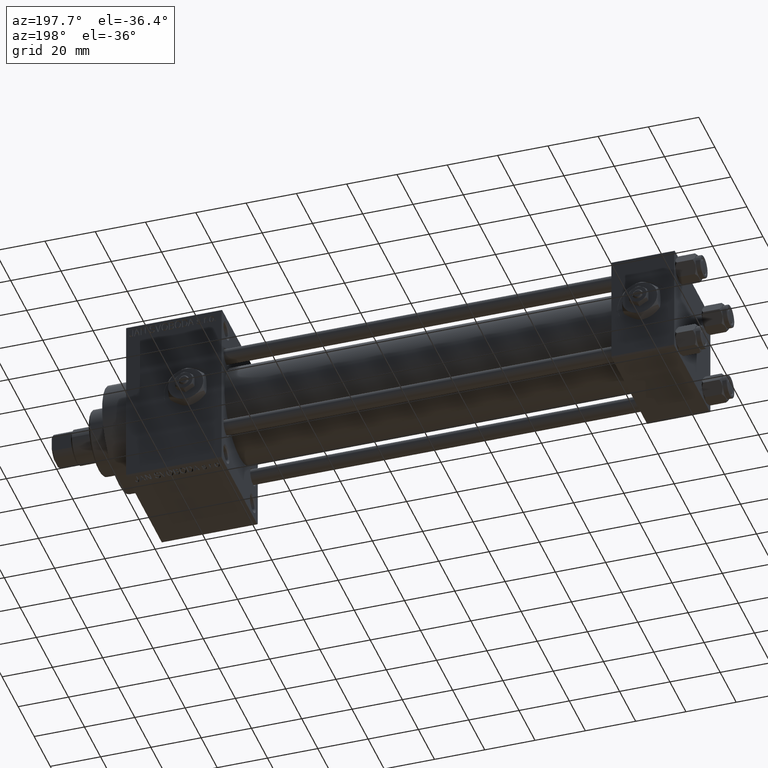
[diagram: clean part render]
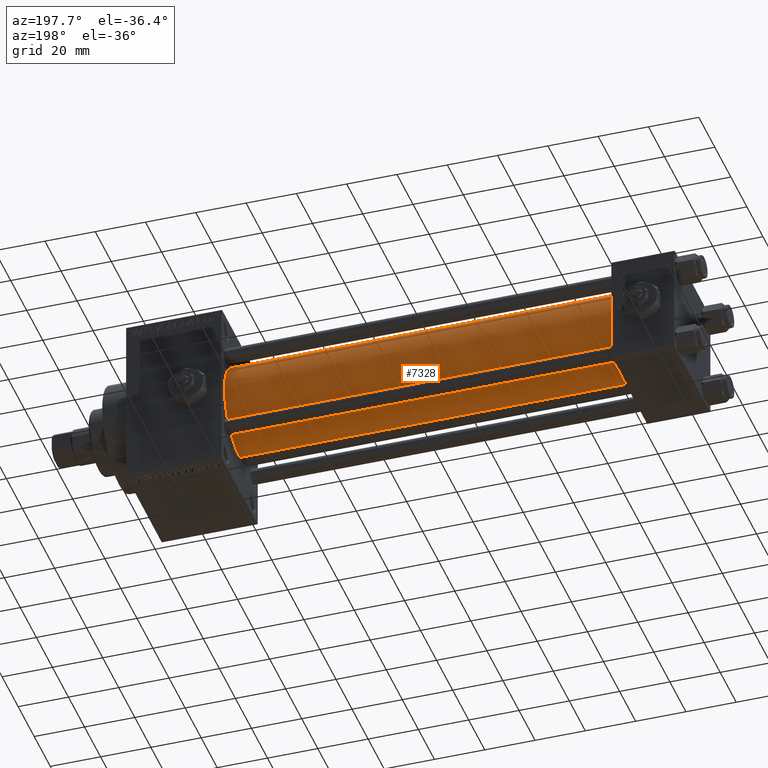
[diagram: same view with one face highlighted and labeled with its STEP entity id]
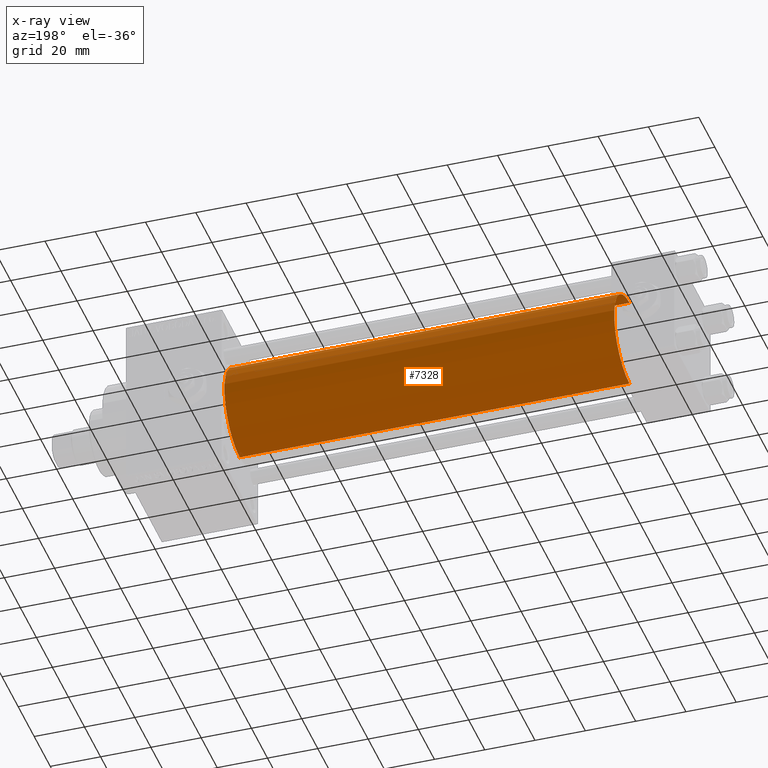
[diagram: x-ray of the same camera — body ghosted, the highlighted face saturated]
A machine part, auxiliary view. The second image highlights one B-rep face of the part: STEP entity #7328.
The next image is the same camera in x-ray: the body ghosted, the highlighted face saturated — about 0% of this face is hidden behind the body in this view.
In plain terms, the highlighted cylindrical surface (partial cylindrical patch) has radius 19 mm, axis along (-1, -0, -0).
Its self-contained STEP definition (entity closure, byte-faithful):
#2327 = ORIENTED_EDGE ( 'NONE', *, *, #49011, .F. ) ;
#2941 = EDGE_CURVE ( 'NONE', #25247, #45998, #28097, .T. ) ;
#3172 = CARTESIAN_POINT ( 'NONE',  ( 180.0000000000000000, -2.602085213965210642E-15, 19.00000000000000000 ) ) ;
#6437 = CARTESIAN_POINT ( 'NONE',  ( 180.0000000000000000, -2.752562955852396712E-16, -19.00000000000000000 ) ) ;
#7328 = ADVANCED_FACE ( 'NONE', ( #43007 ), #20558, .T. ) ;
#8832 = CARTESIAN_POINT ( 'NONE',  ( 180.0000000000000000, -2.602085213965210642E-15, 0.000000000000000000 ) ) ;
#10089 = CARTESIAN_POINT ( 'NONE',  ( 24.99999999999999289, -2.602085213965210642E-15, 19.00000000000000000 ) ) ;
#10952 = DIRECTION ( 'NONE',  ( -1.000000000000000000, -0.000000000000000000, -0.000000000000000000 ) ) ;
#12369 = VERTEX_POINT ( 'NONE', #6437 ) ;
#14221 = EDGE_CURVE ( 'NONE', #12369, #25247, #29904, .T. ) ;
#14898 = CARTESIAN_POINT ( 'NONE',  ( 24.99999999999999289, -2.752562955852396712E-16, -19.00000000000000000 ) ) ;
#16822 = DIRECTION ( 'NONE',  ( 1.000000000000000000, 0.000000000000000000, 0.000000000000000000 ) ) ;
#18033 = VECTOR ( 'NONE', #10952, 1000.000000000000000 ) ;
#18675 = ORIENTED_EDGE ( 'NONE', *, *, #27549, .F. ) ;
#18792 = CIRCLE ( 'NONE', #28345, 19.00000000000000000 ) ;
#19893 = VERTEX_POINT ( 'NONE', #3172 ) ;
#20558 = CYLINDRICAL_SURFACE ( 'NONE', #23459, 19.00000000000000000 ) ;
#20967 = CARTESIAN_POINT ( 'NONE',  ( 24.99999999999999289, -2.602085213965210642E-15, 0.000000000000000000 ) ) ;
#23459 = AXIS2_PLACEMENT_3D ( 'NONE', #8832, #24032, #46983 ) ;
#24032 = DIRECTION ( 'NONE',  ( -1.000000000000000000, -0.000000000000000000, -0.000000000000000000 ) ) ;
#25247 = VERTEX_POINT ( 'NONE', #14898 ) ;
#26419 = VECTOR ( 'NONE', #48192, 1000.000000000000000 ) ;
#27549 = EDGE_CURVE ( 'NONE', #19893, #45998, #33728, .T. ) ;
#28097 = CIRCLE ( 'NONE', #31267, 19.00000000000000000 ) ;
#28345 = AXIS2_PLACEMENT_3D ( 'NONE', #32038, #16822, #32291 ) ;
#28738 = CARTESIAN_POINT ( 'NONE',  ( 180.0000000000000000, -2.602085213965210642E-15, 19.00000000000000000 ) ) ;
#29904 = LINE ( 'NONE', #45119, #18033 ) ;
#31267 = AXIS2_PLACEMENT_3D ( 'NONE', #20967, #36191, #32697 ) ;
#32038 = CARTESIAN_POINT ( 'NONE',  ( 180.0000000000000000, -2.602085213965210642E-15, 0.000000000000000000 ) ) ;
#32291 = DIRECTION ( 'NONE',  ( 0.000000000000000000, 0.000000000000000000, -1.000000000000000000 ) ) ;
#32697 = DIRECTION ( 'NONE',  ( 0.000000000000000000, 0.000000000000000000, 1.000000000000000000 ) ) ;
#33728 = LINE ( 'NONE', #28738, #26419 ) ;
#36191 = DIRECTION ( 'NONE',  ( 1.000000000000000000, -0.000000000000000000, 0.000000000000000000 ) ) ;
#36513 = EDGE_LOOP ( 'NONE', ( #2327, #49105, #38687, #18675 ) ) ;
#38687 = ORIENTED_EDGE ( 'NONE', *, *, #2941, .T. ) ;
#43007 = FACE_OUTER_BOUND ( 'NONE', #36513, .T. ) ;
#45119 = CARTESIAN_POINT ( 'NONE',  ( 180.0000000000000000, -2.752562955852396712E-16, -19.00000000000000000 ) ) ;
#45998 = VERTEX_POINT ( 'NONE', #10089 ) ;
#46983 = DIRECTION ( 'NONE',  ( 0.000000000000000000, 0.000000000000000000, 1.000000000000000000 ) ) ;
#48192 = DIRECTION ( 'NONE',  ( -1.000000000000000000, -0.000000000000000000, -0.000000000000000000 ) ) ;
#49011 = EDGE_CURVE ( 'NONE', #12369, #19893, #18792, .T. ) ;
#49105 = ORIENTED_EDGE ( 'NONE', *, *, #14221, .T. ) ;